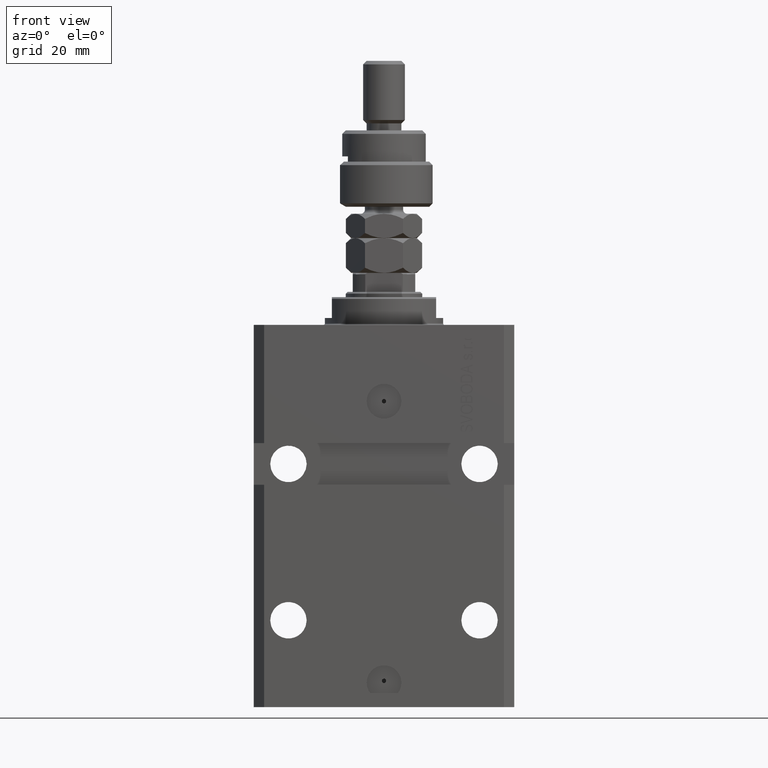
[diagram: clean part render]
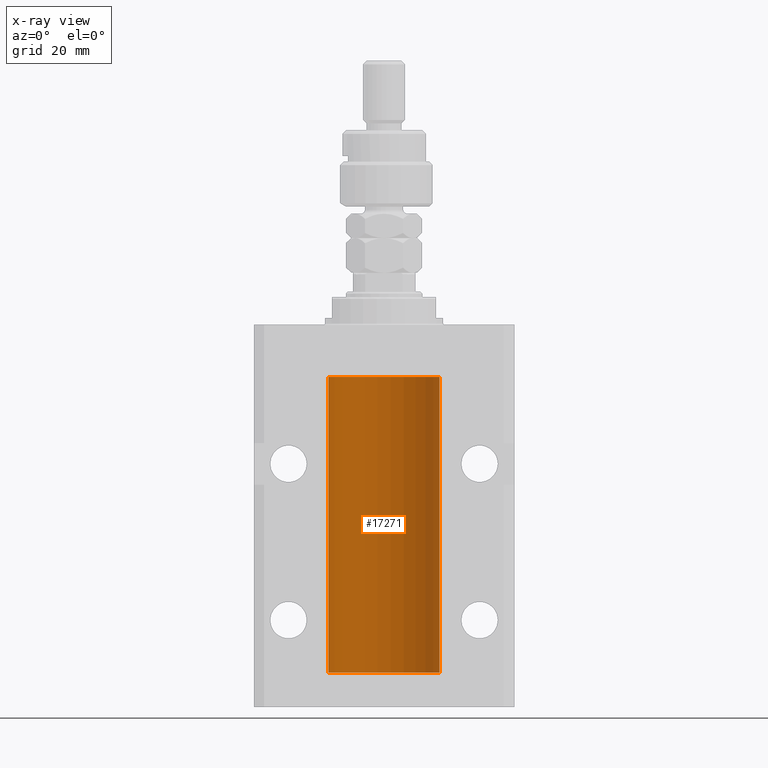
[diagram: x-ray — body ghosted, one internal face saturated and labeled with its STEP entity id]
A machine part, front view, then the same camera in x-ray: the body is ghosted and one INTERNAL B-rep face — a face not visible from any outside direction — is saturated and labeled: STEP entity #17271.
In plain terms, the highlighted cylindrical surface (partial cylindrical patch) has radius 16 mm, axis along (0, 0, 1).
Its self-contained STEP definition (entity closure, byte-faithful):
#324 = ORIENTED_EDGE ( 'NONE', *, *, #31384, .T. ) ;
#1748 = CARTESIAN_POINT ( 'NONE',  ( -15.99548640841682712, 0.3843705577988784650, -97.50046628527007897 ) ) ;
#2723 = ORIENTED_EDGE ( 'NONE', *, *, #47899, .F. ) ;
#2816 = CARTESIAN_POINT ( 'NONE',  ( -16.00000000000000711, 0.08259886010189904093, -21.37500000000000000 ) ) ;
#2978 = VERTEX_POINT ( 'NONE', #31682 ) ;
#3171 = CARTESIAN_POINT ( 'NONE',  ( -16.00000000000013145, 3.685127046438747128E-13, -98.62500000000343903 ) ) ;
#3311 = VERTEX_POINT ( 'NONE', #13625 ) ;
#5598 = CARTESIAN_POINT ( 'NONE',  ( 0.000000000000000000, 0.000000000000000000, -100.0999999999999943 ) ) ;
#5740 = ORIENTED_EDGE ( 'NONE', *, *, #48068, .T. ) ;
#7742 = ORIENTED_EDGE ( 'NONE', *, *, #50059, .T. ) ;
#8356 = CARTESIAN_POINT ( 'NONE',  ( -16.00000000000000000, 1.959434878635765131E-15, -100.0999999999999943 ) ) ;
#8842 = VERTEX_POINT ( 'NONE', #14256 ) ;
#9374 = CARTESIAN_POINT ( 'NONE',  ( -15.99711699979841661, 0.3253759916140614439, -98.55856151623174810 ) ) ;
#9482 = ORIENTED_EDGE ( 'NONE', *, *, #28006, .F. ) ;
#9861 = CARTESIAN_POINT ( 'NONE',  ( -16.00000000000000000, 1.959434878635765131E-15, -15.00000000000000000 ) ) ;
#10696 = VECTOR ( 'NONE', #35974, 1000.000000000000000 ) ;
#10705 = CARTESIAN_POINT ( 'NONE',  ( -15.98779057735153941, 0.6249419637998100407, -21.83670145863507273 ) ) ;
#11567 = AXIS2_PLACEMENT_3D ( 'NONE', #13640, #20462, #16924 ) ;
#11709 = CARTESIAN_POINT ( 'NONE',  ( -15.99070426498503217, 0.5462220647145618058, -22.31460064614143590 ) ) ;
#13185 = CARTESIAN_POINT ( 'NONE',  ( -15.99070653155267685, 0.5573233280232928744, -97.67348148680505915 ) ) ;
#13460 = LINE ( 'NONE', #17251, #29591 ) ;
#13625 = CARTESIAN_POINT ( 'NONE',  ( -16.00000000000013145, 3.685127038166941002E-13, -22.62500000000341771 ) ) ;
#13640 = CARTESIAN_POINT ( 'NONE',  ( 0.000000000000000000, 0.000000000000000000, -15.00000000000000000 ) ) ;
#13705 = DIRECTION ( 'NONE',  ( -0.000000000000000000, -0.000000000000000000, 1.000000000000000000 ) ) ;
#13735 = DIRECTION ( 'NONE',  ( -0.000000000000000000, -0.000000000000000000, 1.000000000000000000 ) ) ;
#14256 = CARTESIAN_POINT ( 'NONE',  ( -16.00000000000013145, 3.685127046438747128E-13, -98.62500000000343903 ) ) ;
#14497 = CARTESIAN_POINT ( 'NONE',  ( -15.98778717651346071, 0.6250289588122140971, -22.08131585687052478 ) ) ;
#14846 = CARTESIAN_POINT ( 'NONE',  ( -15.99999999999998934, 0.1631714642025804407, -98.62499999999987210 ) ) ;
#14870 = CARTESIAN_POINT ( 'NONE',  ( 16.00000000000000000, 0.000000000000000000, -100.0999999999999943 ) ) ;
#15493 = CARTESIAN_POINT ( 'NONE',  ( -15.98844267028591482, 0.6088369347963316081, -22.16324735024328518 ) ) ;
#15591 = DIRECTION ( 'NONE',  ( 0.000000000000000000, 0.000000000000000000, 1.000000000000000000 ) ) ;
#16359 = ORIENTED_EDGE ( 'NONE', *, *, #17883, .F. ) ;
#16763 = DIRECTION ( 'NONE',  ( 1.000000000000000000, 0.000000000000000000, 0.000000000000000000 ) ) ;
#16846 = B_SPLINE_CURVE_WITH_KNOTS ( 'NONE', 3,
 ( #26249, #48170, #29564, #49594, #1748, #13185, #37918, #41224, #18645, #36481, #28632, #9374, #14846, #3171 ),
 .UNSPECIFIED., .F., .F.,
 ( 4, 2, 2, 2, 2, 2, 4 ),
 ( 1.003919637555167698E-18, 0.0002442776652680894158, 0.0004885553305361776391, 0.0009771106610723541940, 0.001221388326340463017, 0.001465665991608572274, 0.001954221322144760863 ),
 .UNSPECIFIED. ) ;
#16924 = DIRECTION ( 'NONE',  ( 1.000000000000000000, 0.000000000000000000, 0.000000000000000000 ) ) ;
#16978 = EDGE_CURVE ( 'NONE', #2978, #32819, #43152, .T. ) ;
#17251 = CARTESIAN_POINT ( 'NONE',  ( -16.00000000000000000, 1.959434878635765131E-15, -100.0999999999999943 ) ) ;
#17271 = ADVANCED_FACE ( 'NONE', ( #18410 ), #33880, .F. ) ;
#17883 = EDGE_CURVE ( 'NONE', #41891, #27881, #46410, .T. ) ;
#18126 = CARTESIAN_POINT ( 'NONE',  ( 0.000000000000000000, 0.000000000000000000, -100.0999999999999943 ) ) ;
#18284 = CARTESIAN_POINT ( 'NONE',  ( -15.99707730059171240, 0.3150375992092407373, -21.45402333202571654 ) ) ;
#18410 = FACE_OUTER_BOUND ( 'NONE', #36346, .T. ) ;
#18645 = CARTESIAN_POINT ( 'NONE',  ( -15.98844267028590949, 0.6088369347963275002, -98.16324735024325321 ) ) ;
#19736 = VERTEX_POINT ( 'NONE', #45593 ) ;
#20462 = DIRECTION ( 'NONE',  ( 0.000000000000000000, 0.000000000000000000, 1.000000000000000000 ) ) ;
#26249 = CARTESIAN_POINT ( 'NONE',  ( -16.00000000000000000, -1.303459030566954747E-14, -97.37500000000000000 ) ) ;
#26903 = CARTESIAN_POINT ( 'NONE',  ( -15.99228023727724413, 0.5003781296993413674, -22.38347829554236057 ) ) ;
#27869 = LINE ( 'NONE', #8356, #10696 ) ;
#27881 = VERTEX_POINT ( 'NONE', #45275 ) ;
#28006 = EDGE_CURVE ( 'NONE', #19736, #3311, #13460, .T. ) ;
#28364 = CARTESIAN_POINT ( 'NONE',  ( -16.00000000000000000, 1.643679961284177128E-16, -21.37499999999999645 ) ) ;
#28632 = CARTESIAN_POINT ( 'NONE',  ( -15.99228023727724057, 0.5003781296993360383, -98.38347829554236057 ) ) ;
#29564 = CARTESIAN_POINT ( 'NONE',  ( -15.99934216141748244, 0.1636497843296308152, -97.39126528029306940 ) ) ;
#29591 = VECTOR ( 'NONE', #13705, 1000.000000000000000 ) ;
#31016 = AXIS2_PLACEMENT_3D ( 'NONE', #18126, #15591, #31058 ) ;
#31058 = DIRECTION ( 'NONE',  ( 1.000000000000000000, 0.000000000000000000, 0.000000000000000000 ) ) ;
#31384 = EDGE_CURVE ( 'NONE', #47707, #3311, #40434, .T. ) ;
#31682 = CARTESIAN_POINT ( 'NONE',  ( 16.00000000000000000, 0.000000000000000000, -15.00000000000000000 ) ) ;
#32819 = VERTEX_POINT ( 'NONE', #9861 ) ;
#33749 = CARTESIAN_POINT ( 'NONE',  ( -15.99548640841683067, 0.3843705577988847377, -21.50046628527008608 ) ) ;
#33880 = CYLINDRICAL_SURFACE ( 'NONE', #40727, 16.00000000000000000 ) ;
#34076 = LINE ( 'NONE', #41197, #46238 ) ;
#34332 = DIRECTION ( 'NONE',  ( -0.000000000000000000, -0.000000000000000000, 1.000000000000000000 ) ) ;
#34438 = LINE ( 'NONE', #45609, #44751 ) ;
#35006 = CARTESIAN_POINT ( 'NONE',  ( -16.00000000000013145, 3.685127038166941002E-13, -22.62500000000341771 ) ) ;
#35974 = DIRECTION ( 'NONE',  ( -0.000000000000000000, -0.000000000000000000, 1.000000000000000000 ) ) ;
#36346 = EDGE_LOOP ( 'NONE', ( #2723, #16359, #7742, #46004, #46275, #324, #9482, #5740 ) ) ;
#36481 = CARTESIAN_POINT ( 'NONE',  ( -15.99070426498503572, 0.5462220647145610286, -98.31460064614144301 ) ) ;
#37563 = CARTESIAN_POINT ( 'NONE',  ( -16.00000000000000000, 1.643679961284177128E-16, -21.37499999999999645 ) ) ;
#37918 = CARTESIAN_POINT ( 'NONE',  ( -15.98779057735153941, 0.6249419637998017141, -97.83670145863504786 ) ) ;
#38743 = DIRECTION ( 'NONE',  ( -0.000000000000000000, -0.000000000000000000, 1.000000000000000000 ) ) ;
#40434 = B_SPLINE_CURVE_WITH_KNOTS ( 'NONE', 3,
 ( #37563, #2816, #45168, #18284, #33749, #49235, #10705, #14497, #15493, #11709, #26903, #49992, #41878, #35006 ),
 .UNSPECIFIED., .F., .F.,
 ( 4, 2, 2, 2, 2, 2, 4 ),
 ( 1.597328219370744179E-19, 0.0002442776652680942405, 0.0004885553305361882643, 0.0009771106610723839011, 0.001221388326340481665, 0.001465665991608579430, 0.001954221322144767369 ),
 .UNSPECIFIED. ) ;
#40727 = AXIS2_PLACEMENT_3D ( 'NONE', #5598, #13735, #16763 ) ;
#41197 = CARTESIAN_POINT ( 'NONE',  ( -16.00000000000000000, 1.959434878635765131E-15, -100.0999999999999943 ) ) ;
#41224 = CARTESIAN_POINT ( 'NONE',  ( -15.98778717651346604, 0.6250289588122097673, -98.08131585687051768 ) ) ;
#41878 = CARTESIAN_POINT ( 'NONE',  ( -16.00000000000000000, 0.1631714642025800244, -22.62499999999985789 ) ) ;
#41891 = VERTEX_POINT ( 'NONE', #14870 ) ;
#43152 = CIRCLE ( 'NONE', #11567, 16.00000000000000000 ) ;
#44751 = VECTOR ( 'NONE', #38743, 1000.000000000000000 ) ;
#45168 = CARTESIAN_POINT ( 'NONE',  ( -15.99934216141748244, 0.1636497843296417787, -21.39126528029306229 ) ) ;
#45275 = CARTESIAN_POINT ( 'NONE',  ( -16.00000000000000000, 1.959434878635765131E-15, -100.0999999999999943 ) ) ;
#45593 = CARTESIAN_POINT ( 'NONE',  ( -16.00000000000000000, -1.303459030566954747E-14, -97.37500000000000000 ) ) ;
#45609 = CARTESIAN_POINT ( 'NONE',  ( 16.00000000000000000, 0.000000000000000000, -100.0999999999999943 ) ) ;
#45823 = EDGE_CURVE ( 'NONE', #47707, #32819, #34076, .T. ) ;
#46004 = ORIENTED_EDGE ( 'NONE', *, *, #16978, .T. ) ;
#46238 = VECTOR ( 'NONE', #34332, 1000.000000000000000 ) ;
#46275 = ORIENTED_EDGE ( 'NONE', *, *, #45823, .F. ) ;
#46410 = CIRCLE ( 'NONE', #31016, 16.00000000000000000 ) ;
#47707 = VERTEX_POINT ( 'NONE', #28364 ) ;
#47899 = EDGE_CURVE ( 'NONE', #27881, #8842, #27869, .T. ) ;
#48068 = EDGE_CURVE ( 'NONE', #19736, #8842, #16846, .T. ) ;
#48170 = CARTESIAN_POINT ( 'NONE',  ( -16.00000000000000711, 0.08259886010188650929, -97.37500000000000000 ) ) ;
#49235 = CARTESIAN_POINT ( 'NONE',  ( -15.99070653155267685, 0.5573233280232986475, -21.67348148680506625 ) ) ;
#49594 = CARTESIAN_POINT ( 'NONE',  ( -15.99707730059171240, 0.3150375992092294686, -97.45402333202572720 ) ) ;
#49992 = CARTESIAN_POINT ( 'NONE',  ( -15.99711699979842017, 0.3253759916140657737, -22.55856151623175521 ) ) ;
#50059 = EDGE_CURVE ( 'NONE', #41891, #2978, #34438, .T. ) ;